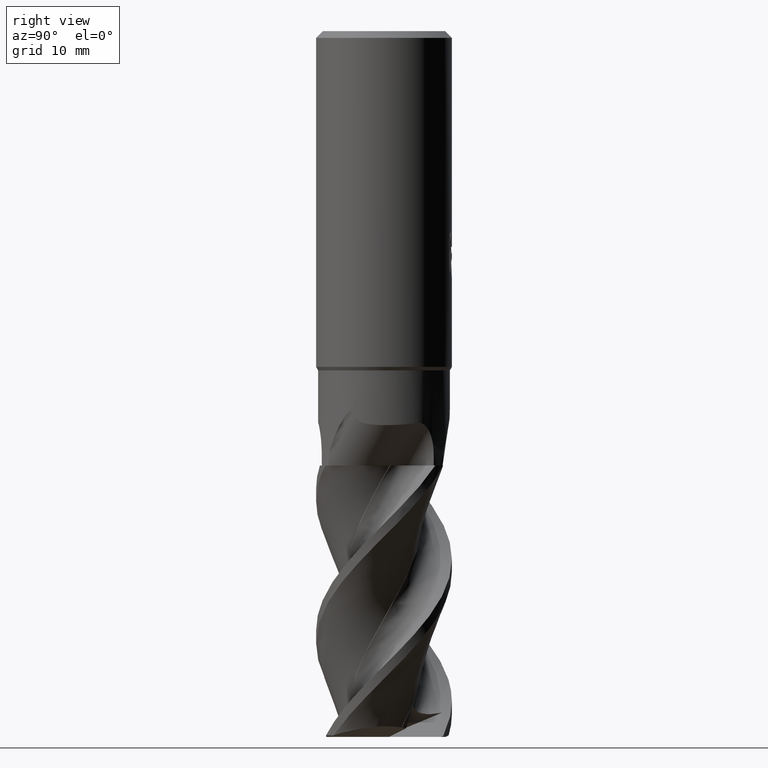
[diagram: clean part render]
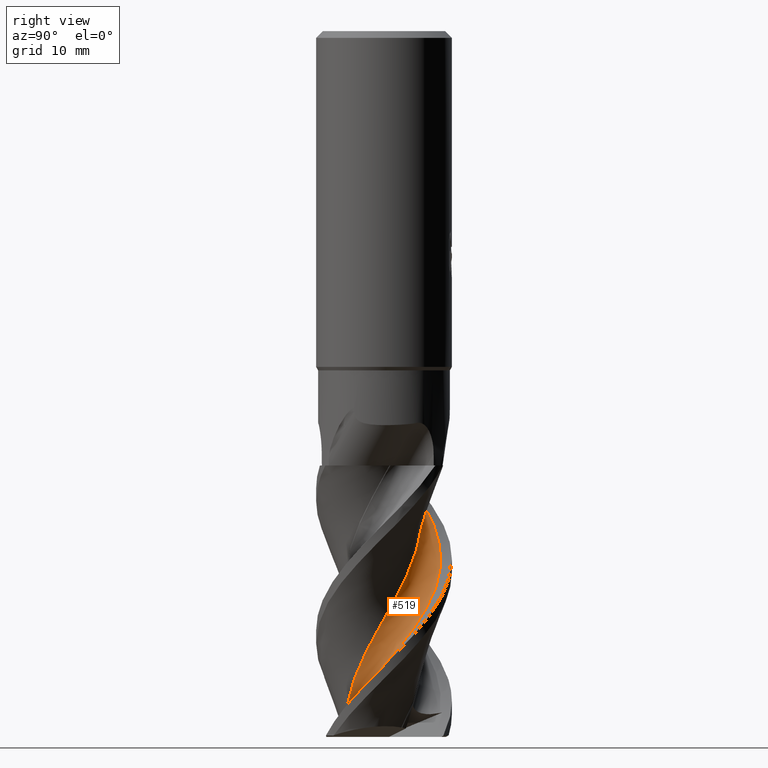
[diagram: same view with one face highlighted and labeled with its STEP entity id]
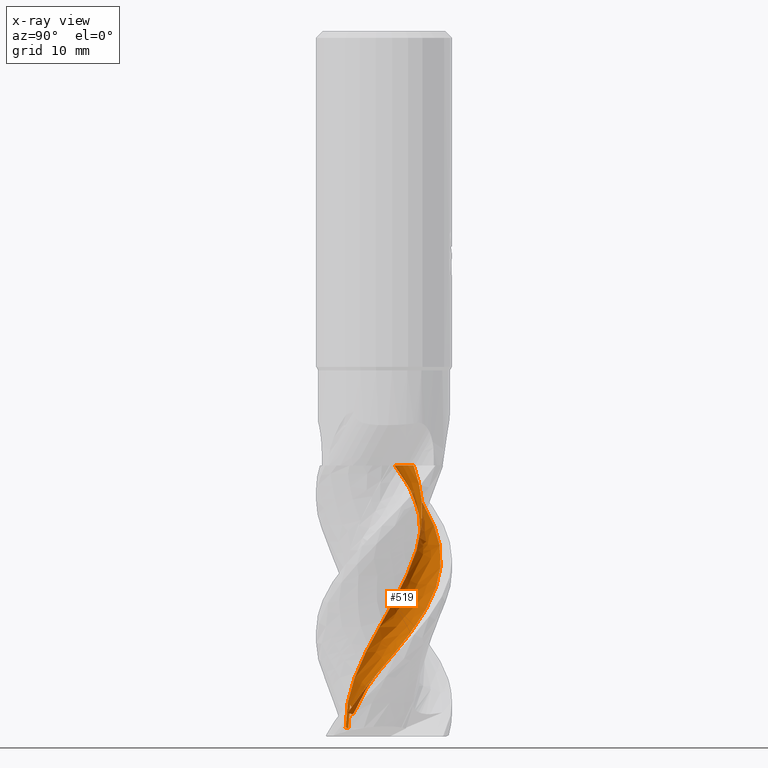
[diagram: x-ray of the same camera — body ghosted, the highlighted face saturated]
A machine part, right view. The second image highlights one B-rep face of the part: STEP entity #519.
The next image is the same camera in x-ray: the body ghosted, the highlighted face saturated — about 1% of this face is hidden behind the body in this view.
In plain terms, the highlighted face is a freeform B-spline surface patch.
Its self-contained STEP definition (entity closure, byte-faithful):
#519=ADVANCED_FACE('',(#1381),#1382,.T.);
#545=VERTEX_POINT('',#1410);
#575=EDGE_CURVE('',#1195,#893,#1441,.T.);
#657=EDGE_CURVE('',#1253,#1187,#1535,.T.);
#777=EDGE_CURVE('',#893,#1187,#1662,.T.);
#893=VERTEX_POINT('',#1795);
#1005=VERTEX_POINT('',#1912);
#1079=EDGE_CURVE('',#1253,#1005,#1993,.T.);
#1139=EDGE_CURVE('',#1005,#545,#2062,.T.);
#1187=VERTEX_POINT('',#2112);
#1195=VERTEX_POINT('',#2120);
#1253=VERTEX_POINT('',#2183);
#1261=EDGE_CURVE('',#545,#1195,#2192,.T.);
#1381=FACE_OUTER_BOUND('',#2611,.T.);
#1382=B_SPLINE_SURFACE_WITH_KNOTS('',3,3,((#2612,#2613,#2614,#2615,#2616,#2617,#2618,#2619,#2620,#2621,#2622,#2623,#2624,#2625,#2626,#2627,#2628,#2629,#2630,#2631,#2632,#2633,#2634,#2635,#2636,#2637,#2638,#2639,#2640,#2641,#2642,#2643,#2644,#2645,#2646,#2647,#2648,#2649,#2650,#2651,#2652,#2653,#2654,#2655,#2656,#2657,#2658,#2659,#2660,#2661,#2662,#2663,#2664,#2665,#2666,#2667),(#2668,#2669,#2670,#2671,#2672,#2673,#2674,#2675,#2676,#2677,#2678,#2679,#2680,#2681,#2682,#2683,#2684,#2685,#2686,#2687,#2688,#2689,#2690,#2691,#2692,#2693,#2694,#2695,#2696,#2697,#2698,#2699,#2700,#2701,#2702,#2703,#2704,#2705,#2706,#2707,#2708,#2709,#2710,#2711,#2712,#2713,#2714,#2715,#2716,#2717,#2718,#2719,#2720,#2721,#2722,#2723),(#2724,#2725,#2726,#2727,#2728,#2729,#2730,#2731,#2732,#2733,#2734,#2735,#2736,#2737,#2738,#2739,#2740,#2741,#2742,#2743,#2744,#2745,#2746,#2747,#2748,#2749,#2750,#2751,#2752,#2753,#2754,#2755,#2756,#2757,#2758,#2759,#2760,#2761,#2762,#2763,#2764,#2765,#2766,#2767,#2768,#2769,#2770,#2771,#2772,#2773,#2774,#2775,#2776,#2777,#2778,#2779),(#2780,#2781,#2782,#2783,#2784,#2785,#2786,#2787,#2788,#2789,#2790,#2791,#2792,#2793,#2794,#2795,#2796,#2797,#2798,#2799,#2800,#2801,#2802,#2803,#2804,#2805,#2806,#2807,#2808,#2809,#2810,#2811,#2812,#2813,#2814,#2815,#2816,#2817,#2818,#2819,#2820,#2821,#2822,#2823,#2824,#2825,#2826,#2827,#2828,#2829,#2830,#2831,#2832,#2833,#2834,#2835),(#2836,#2837,#2838,#2839,#2840,#2841,#2842,#2843,#2844,#2845,#2846,#2847,#2848,#2849,#2850,#2851,#2852,#2853,#2854,#2855,#2856,#2857,#2858,#2859,#2860,#2861,#2862,#2863,#2864,#2865,#2866,#2867,#2868,#2869,#2870,#2871,#2872,#2873,#2874,#2875,#2876,#2877,#2878,#2879,#2880,#2881,#2882,#2883,#2884,#2885,#2886,#2887,#2888,#2889,#2890,#2891),(#2892,#2893,#2894,#2895,#2896,#2897,#2898,#2899,#2900,#2901,#2902,#2903,#2904,#2905,#2906,#2907,#2908,#2909,#2910,#2911,#2912,#2913,#2914,#2915,#2916,#2917,#2918,#2919,#2920,#2921,#2922,#2923,#2924,#2925,#2926,#2927,#2928,#2929,#2930,#2931,#2932,#2933,#2934,#2935,#2936,#2937,#2938,#2939,#2940,#2941,#2942,#2943,#2944,#2945,#2946,#2947),(#2948,#2949,#2950,#2951,#2952,#2953,#2954,#2955,#2956,#2957,#2958,#2959,#2960,#2961,#2962,#2963,#2964,#2965,#2966,#2967,#2968,#2969,#2970,#2971,#2972,#2973,#2974,#2975,#2976,#2977,#2978,#2979,#2980,#2981,#2982,#2983,#2984,#2985,#2986,#2987,#2988,#2989,#2990,#2991,#2992,#2993,#2994,#2995,#2996,#2997,#2998,#2999,#3000,#3001,#3002,#3003)),.UNSPECIFIED.,.F.,.F.,.F.,(4,1,1,1,4),(4,1,1,2,1,2,1,2,1,1,1,2,1,2,1,2,1,2,1,2,1,2,1,2,1,2,1,2,1,2,1,2,1,2,1,2,1,4),(-1.0741206365629E-016,0.362155819777946,0.724311639555892,1.08646745933384,1.44862327911178),(0.0,1.2562153494694,1.88432302420411,2.51243069893881,3.76864604840821,5.02486139787761,7.53729209681642,10.0497227957552,11.3059381452246,12.562153494694,13.8183688441634,15.0745841936328,17.5870148925716,20.0994455915105,22.6118762904493,25.1243069893881,27.6367376883269,30.1491683872657,32.6615990862045,35.1740297851433,37.6864604840821,40.1988911830209,42.7113218819597,45.2237525808985,47.7361832798373,50.2486139787761,52.7610446777149,55.2734753766537,57.7859060755926,60.2983367745314,62.8107674734702,65.323198172409,67.8356288713478,70.3480595702866,72.8604902692254,75.3729209681642,77.885351667103,80.3977823660418),.UNSPECIFIED.);
#1410=CARTESIAN_POINT('',(0.697630034338884,-5.24131553305176,-102.739324993559));
#1441=B_SPLINE_CURVE_WITH_KNOTS('',3,(#3209,#3210,#3211,#3212,#3213,#3214,#3215,#3216,#3217,#3218,#3219,#3220,#3221,#3222,#3223,#3224,#3225,#3226,#3227,#3228,#3229,#3230,#3231,#3232,#3233,#3234,#3235,#3236,#3237,#3238,#3239,#3240,#3241,#3242,#3243,#3244,#3245,#3246,#3247,#3248,#3249,#3250,#3251,#3252,#3253,#3254,#3255,#3256,#3257,#3258,#3259,#3260,#3261),.UNSPECIFIED.,.F.,.F.,(4,1,2,1,2,1,2,1,2,1,2,1,2,1,2,1,2,1,2,1,2,1,2,1,2,1,2,1,2,1,2,1,2,1,4),(0.0,1.2562153494694,2.51243069893881,3.76864604840821,5.02486139787761,7.53729209681642,10.0497227957552,12.562153494694,15.0745841936328,17.5870148925716,20.0994455915105,22.6118762904493,25.1243069893881,27.6367376883269,30.1491683872657,32.6615990862045,35.1740297851433,37.6864604840821,40.1988911830209,42.7113218819597,45.2237525808985,47.7361832798373,50.2486139787761,52.7610446777149,55.2734753766537,57.7859060755926,60.2983367745314,62.8107674734702,65.323198172409,67.8356288713478,70.3480595702866,72.8604902692254,75.3729209681642,77.885351667103,80.3977823660418),.UNSPECIFIED.);
#1535=B_SPLINE_CURVE_WITH_KNOTS('',3,(#3953,#3954,#3955,#3956,#3957,#3958,#3959,#3960,#3961,#3962,#3963,#3964,#3965,#3966,#3967,#3968,#3969,#3970,#3971,#3972,#3973,#3974,#3975,#3976,#3977,#3978,#3979,#3980,#3981,#3982,#3983,#3984,#3985,#3986,#3987,#3988,#3989,#3990,#3991,#3992,#3993,#3994,#3995,#3996,#3997,#3998,#3999,#4000,#4001,#4002,#4003,#4004,#4005,#4006,#4007,#4008),.UNSPECIFIED.,.F.,.F.,(4,1,1,2,1,2,1,2,1,1,1,2,1,2,1,2,1,2,1,2,1,2,1,2,1,2,1,2,1,2,1,2,1,2,1,2,1,4),(0.0,1.2562153494694,1.88432302420411,2.51243069893881,3.76864604840821,5.02486139787761,7.53729209681642,10.0497227957552,11.3059381452246,12.562153494694,13.8183688441634,15.0745841936328,17.5870148925716,20.0994455915105,22.6118762904493,25.1243069893881,27.6367376883269,30.1491683872657,32.6615990862045,35.1740297851433,37.6864604840821,40.1988911830209,42.7113218819597,45.2237525808985,47.7361832798373,50.2486139787761,52.7610446777149,55.2734753766537,57.7859060755926,60.2983367745314,62.8107674734702,65.323198172409,67.8356288713478,70.3480595702866,72.8604902692254,75.3729209681642,77.885351667103,80.3977823660418),.UNSPECIFIED.);
#1662=B_SPLINE_CURVE_WITH_KNOTS('',3,(#4691,#4692,#4693,#4694,#4695,#4696,#4697,#4698,#4699,#4700),.UNSPECIFIED.,.F.,.F.,(4,2,2,2,4),(0.0,1.58917941689797,3.1782583156222,4.54299936996219,5.9077090378205),.UNSPECIFIED.);
#1795=CARTESIAN_POINT('',(-3.59254203098114,4.36123755322661,-64.0000000000142));
#1912=CARTESIAN_POINT('',(2.05382532942316,-4.9912354014841,-99.3260103740839));
#1993=B_SPLINE_CURVE_WITH_KNOTS('',3,(#8211,#8212,#8213,#8214,#8215,#8216,#8217,#8218,#8219,#8220,#8221,#8222),.UNSPECIFIED.,.F.,.F.,(4,2,2,2,2,4),(0.0,2.05351377162254,3.44269319434948,4.47278187714262,5.4225572670729,6.1251875237065),.UNSPECIFIED.);
#2062=B_SPLINE_CURVE_WITH_KNOTS('',3,(#9029,#9030,#9031,#9032,#9033,#9034,#9035,#9036,#9037,#9038),.UNSPECIFIED.,.F.,.F.,(4,2,2,2,4),(0.0,3.28436594827218,5.16969226336609,8.69076298013243,12.0571280478275),.UNSPECIFIED.);
#2112=CARTESIAN_POINT('',(-8.21583084974177,1.59106973061077,-64.0000000000002));
#2120=CARTESIAN_POINT('',(-0.163584784346962,-5.64739651352138,-102.607381284739));
#2183=CARTESIAN_POINT('',(6.41067370808631,-5.37938452218688,-100.473594224671));
#2192=B_SPLINE_CURVE_WITH_KNOTS('',3,(#10008,#10009,#10010,#10011,#10012,#10013),.UNSPECIFIED.,.F.,.F.,(4,2,4),(0.0,0.918155905580375,1.81260172435705),.UNSPECIFIED.);
#2611=EDGE_LOOP('',(#10166,#10167,#10168,#10169,#10170,#10171));
#2612=CARTESIAN_POINT('',(-4.83107658423176,2.85741258421852,-124.0));
#2613=CARTESIAN_POINT('',(-4.85984183783767,2.85520423692796,-123.583489134418));
#2614=CARTESIAN_POINT('',(-4.94909253308961,2.75695740984732,-122.957519477871));
#2615=CARTESIAN_POINT('',(-5.13274577943178,2.41455558506123,-122.122694321478));
#2616=CARTESIAN_POINT('',(-5.23531044688363,2.16841966580421,-121.705937944665));
#2617=CARTESIAN_POINT('',(-5.38618577900745,1.74230482075507,-121.081961459944));
#2618=CARTESIAN_POINT('',(-5.53164709563376,1.20455058119635,-120.250473814629));
#2619=CARTESIAN_POINT('',(-5.60090462465886,0.730610848828762,-119.417804460286));
#2620=CARTESIAN_POINT('',(-5.66572564696487,0.0578044164119151,-118.166779737554));
#2621=CARTESIAN_POINT('',(-5.64598922740512,-0.841868922201085,-116.498827370045));
#2622=CARTESIAN_POINT('',(-5.39764886394642,-1.75099611851244,-114.831351833637));
#2623=CARTESIAN_POINT('',(-5.10927240451381,-2.42500209907253,-113.581977742909));
#2624=CARTESIAN_POINT('',(-4.89320144777704,-2.85296304328729,-112.749152188109));
#2625=CARTESIAN_POINT('',(-4.50322250644853,-3.4362192704442,-111.499670947832));
#2626=CARTESIAN_POINT('',(-4.04669536229412,-3.96538585045992,-110.249745190633));
#2627=CARTESIAN_POINT('',(-3.69452993904211,-4.2826587461019,-109.41623678091));
#2628=CARTESIAN_POINT('',(-3.12690327772158,-4.72947463990694,-108.166014587275));
#2629=CARTESIAN_POINT('',(-2.3235479425068,-5.2127128486472,-106.499518140304));
#2630=CARTESIAN_POINT('',(-1.42693942064384,-5.48966230158005,-104.832463074629));
#2631=CARTESIAN_POINT('',(-0.476104281071404,-5.64960895081664,-103.165874721699));
#2632=CARTESIAN_POINT('',(0.459867046598248,-5.68838852530921,-101.499637161791));
#2633=CARTESIAN_POINT('',(1.37873517113813,-5.50209373030847,-99.8325837457953));
#2634=CARTESIAN_POINT('',(2.29038457310019,-5.18649346564756,-98.1658989284321));
#2635=CARTESIAN_POINT('',(3.1309920374696,-4.77143116050014,-96.4996050304622));
#2636=CARTESIAN_POINT('',(3.84810460001037,-4.16716544457898,-94.832558183804));
#2637=CARTESIAN_POINT('',(4.49660288369389,-3.45337817098467,-93.1658935381287));
#2638=CARTESIAN_POINT('',(5.03517302049759,-2.68638927294522,-91.4996077982862));
#2639=CARTESIAN_POINT('',(5.37484554289749,-1.81232142343461,-89.8325562130519));
#2640=CARTESIAN_POINT('',(5.60178363395305,-0.874839088269213,-88.1658874935744));
#2641=CARTESIAN_POINT('',(5.70669315278437,0.0565851557501879,-86.4996023694439));
#2642=CARTESIAN_POINT('',(5.58571795286742,0.986450305120184,-84.8325544668937));
#2643=CARTESIAN_POINT('',(5.33546723975916,1.91784710908979,-83.1658874402518));
#2644=CARTESIAN_POINT('',(4.98104310234723,2.78548397007053,-81.4996004435352));
#2645=CARTESIAN_POINT('',(4.42904755105358,3.54358489371492,-79.8325490292434));
#2646=CARTESIAN_POINT('',(3.76278883236554,4.24107484850735,-78.1658806994133));
#2647=CARTESIAN_POINT('',(3.03570006450884,4.83260149603101,-76.4995960270282));
#2648=CARTESIAN_POINT('',(2.18788985462631,5.23320626328994,-74.8325481620052));
#2649=CARTESIAN_POINT('',(1.26894672273599,5.52585926012576,-73.1658807544039));
#2650=CARTESIAN_POINT('',(0.347370552085116,5.69640651867527,-71.4995933575733));
#2651=CARTESIAN_POINT('',(-0.588782676327873,5.64152560074168,-69.8325415335107));
#2652=CARTESIAN_POINT('',(-1.53567092029058,5.45775003973806,-68.1658727490523));
#2653=CARTESIAN_POINT('',(-2.42628970478902,5.16552825687482,-66.4995882626623));
#2654=CARTESIAN_POINT('',(-3.22149790129932,4.66853590567415,-64.8325437396665));
#2655=CARTESIAN_POINT('',(-3.96428789699309,4.05335807851242,-63.1658817597549));
#2656=CARTESIAN_POINT('',(-4.60568543117711,3.37005737181973,-61.4995936320529));
#2657=CARTESIAN_POINT('',(-5.0652978156308,2.55271036889284,-59.8325250797754));
#2658=CARTESIAN_POINT('',(-5.4222710448791,1.656581703096,-58.1658325075494));
#2659=CARTESIAN_POINT('',(-5.65756979729374,0.749089994285798,-56.4995552611875));
#2660=CARTESIAN_POINT('',(-5.66900139968616,-0.188194491862587,-54.832571445916));
#2661=CARTESIAN_POINT('',(-5.55301317673233,-1.14467893524144,-53.1659818005691));
#2662=CARTESIAN_POINT('',(-5.32510769932733,-2.05334483673181,-51.4996520029366));
#2663=CARTESIAN_POINT('',(-4.88404285341836,-2.88447337093531,-49.8324230396109));
#2664=CARTESIAN_POINT('',(-4.318623668717,-3.67275127190707,-48.165596216859));
#2665=CARTESIAN_POINT('',(-3.6805603999102,-4.35952873913681,-46.4994934389875));
#2666=CARTESIAN_POINT('',(-2.91158299771985,-4.86793214936825,-44.8327268137792));
#2667=CARTESIAN_POINT('',(-2.48893759384941,-5.07502783564365,-43.9993863601179));
#2668=CARTESIAN_POINT('',(-4.8147522151221,2.36676173862821,-124.0));
#2669=CARTESIAN_POINT('',(-4.83989144234571,2.36467403314079,-123.583471296281));
#2670=CARTESIAN_POINT('',(-4.91566013677035,2.26678014273113,-122.957623030004));
#2671=CARTESIAN_POINT('',(-5.06497332839445,1.92802741949817,-122.122982992679));
#2672=CARTESIAN_POINT('',(-5.14502171720395,1.68570297589585,-121.706237145751));
#2673=CARTESIAN_POINT('',(-5.25847524585878,1.26759912464769,-121.082132095118));
#2674=CARTESIAN_POINT('',(-5.35840304999545,0.743617554602509,-120.250413710071));
#2675=CARTESIAN_POINT('',(-5.38983074479187,0.286944194208991,-119.417661812426));
#2676=CARTESIAN_POINT('',(-5.40238542523941,-0.358376283964306,-118.166765436732));
#2677=CARTESIAN_POINT('',(-5.31785570456659,-1.21343813743355,-116.498973586331));
#2678=CARTESIAN_POINT('',(-5.01501779409647,-2.06145616644312,-114.831598626253));
#2679=CARTESIAN_POINT('',(-4.69106030405929,-2.68297497383419,-113.582146118434));
#2680=CARTESIAN_POINT('',(-4.45396108870468,-3.07507167137666,-112.74925703127));
#2681=CARTESIAN_POINT('',(-4.03990365948538,-3.60225617045985,-111.499710896015));
#2682=CARTESIAN_POINT('',(-3.5664223626929,-4.07302032945712,-110.24977580646));
#2683=CARTESIAN_POINT('',(-3.20775218901903,-4.3496494724827,-109.416289229205));
#2684=CARTESIAN_POINT('',(-2.63423222839776,-4.73413772341773,-108.166094701098));
#2685=CARTESIAN_POINT('',(-1.83368888440477,-5.13584026703646,-106.499576878258));
#2686=CARTESIAN_POINT('',(-0.959386021661692,-5.33428001478732,-104.832570137094));
#2687=CARTESIAN_POINT('',(-0.041525349876369,-5.41746553991929,-103.165971870908));
#2688=CARTESIAN_POINT('',(0.852903387565208,-5.38609389497597,-101.49968054873));
#2689=CARTESIAN_POINT('',(1.71461358879699,-5.14162550634891,-99.8326753396521));
#2690=CARTESIAN_POINT('',(2.56049541998753,-4.77443600967512,-98.1659926055094));
#2691=CARTESIAN_POINT('',(3.33096678084633,-4.31769665843457,-96.4996520359114));
#2692=CARTESIAN_POINT('',(3.97001146400057,-3.68978799094185,-94.8326525443866));
#2693=CARTESIAN_POINT('',(4.53608589051259,-2.96226596367183,-93.1659874677001));
#2694=CARTESIAN_POINT('',(4.99314815337413,-2.19232738772452,-91.49965404604));
#2695=CARTESIAN_POINT('',(5.25297447004887,-1.33493424462244,-89.8326503635734));
#2696=CARTESIAN_POINT('',(5.40098118692261,-0.42491795088923,-88.1659817877662));
#2697=CARTESIAN_POINT('',(5.43293888919873,0.470012594710599,-86.4996488736355));
#2698=CARTESIAN_POINT('',(5.24989043783475,1.34696456767424,-84.8326483783648));
#2699=CARTESIAN_POINT('',(4.94354556638945,2.21642315349205,-83.1659813517229));
#2700=CARTESIAN_POINT('',(4.54259823071808,3.01706474081777,-81.4996467424636));
#2701=CARTESIAN_POINT('',(3.96149247256157,3.69896622744234,-79.8326432061324));
#2702=CARTESIAN_POINT('',(3.27569891029131,4.31519697136236,-78.1659750199726));
#2703=CARTESIAN_POINT('',(2.53990287685351,4.82561890504039,-76.4996424540646));
#2704=CARTESIAN_POINT('',(1.70307946924241,5.1454024666795,-74.8326420382053));
#2705=CARTESIAN_POINT('',(0.805947663330664,5.35738943277675,-73.165974630604));
#2706=CARTESIAN_POINT('',(-0.0843908223124151,5.45259187797167,-71.4996397230798));
#2707=CARTESIAN_POINT('',(-0.972153393062773,5.33204546821935,-69.8326357566176));
#2708=CARTESIAN_POINT('',(-1.86121994673007,5.08792780119175,-68.1659672595));
#2709=CARTESIAN_POINT('',(-2.68829535756974,4.74455676258749,-66.4996347659645));
#2710=CARTESIAN_POINT('',(-3.40955513835174,4.21314022328684,-64.8326374137414));
#2711=CARTESIAN_POINT('',(-4.07267897718945,3.57273169404282,-63.1659745718075));
#2712=CARTESIAN_POINT('',(-4.63380167905972,2.87500973066059,-61.4996390606654));
#2713=CARTESIAN_POINT('',(-5.01201687635592,2.06290186855445,-59.8326205602654));
#2714=CARTESIAN_POINT('',(-5.28696919844401,1.18282627484783,-58.1659311487879));
#2715=CARTESIAN_POINT('',(-5.44488400718686,0.301173963506645,-56.4996052397528));
#2716=CARTESIAN_POINT('',(-5.38742081251424,-0.592496482835579,-54.8326610492614));
#2717=CARTESIAN_POINT('',(-5.20720827988931,-1.49562946836735,-53.1660610596469));
#2718=CARTESIAN_POINT('',(-4.92379000003787,-2.34457858211186,-51.4996886954588));
#2719=CARTESIAN_POINT('',(-4.44302288764593,-3.10417798048708,-49.8325296530412));
#2720=CARTESIAN_POINT('',(-3.84669494157446,-3.81435481127843,-48.1657238061652));
#2721=CARTESIAN_POINT('',(-3.18873610395572,-4.422014928153,-46.4995522333838));
#2722=CARTESIAN_POINT('',(-2.41928468238575,-4.85006531491884,-44.8328008670738));
#2723=CARTESIAN_POINT('',(-2.00150964728401,-5.01655794305322,-43.9994629994794));
#2724=CARTESIAN_POINT('',(-4.96169007308228,1.37963322150694,-124.0));
#2725=CARTESIAN_POINT('',(-4.97953419975811,1.37645962075615,-123.583436805489));
#2726=CARTESIAN_POINT('',(-5.02821377465326,1.27433698359537,-122.957823244258));
#2727=CARTESIAN_POINT('',(-5.10752163392067,0.930312642851853,-122.12354112962));
#2728=CARTESIAN_POINT('',(-5.14114923778697,0.6873688830259,-121.706815637475));
#2729=CARTESIAN_POINT('',(-5.17683834518586,0.271587965211065,-121.082462018055));
#2730=CARTESIAN_POINT('',(-5.18067194551255,-0.241517986718847,-120.250297498164));
#2731=CARTESIAN_POINT('',(-5.13013180549842,-0.67750982322528,-119.417386005723));
#2732=CARTESIAN_POINT('',(-5.02810945686206,-1.28699650100529,-118.166737790869));
#2733=CARTESIAN_POINT('',(-4.7976846023945,-2.0765636872567,-116.499256301777));
#2734=CARTESIAN_POINT('',(-4.36350168538457,-2.82232828210098,-114.83207576383));
#2735=CARTESIAN_POINT('',(-3.94918213793485,-3.35191150482042,-113.582471680113));
#2736=CARTESIAN_POINT('',(-3.65690619892092,-3.67998699598018,-112.749459740696));
#2737=CARTESIAN_POINT('',(-3.17417639782519,-4.10385784234793,-111.499788140173));
#2738=CARTESIAN_POINT('',(-2.645416226418,-4.46404013201413,-110.249835002152));
#2739=CARTESIAN_POINT('',(-2.25886260496274,-4.66177479749327,-109.416390622557));
#2740=CARTESIAN_POINT('',(-1.65074547301539,-4.92378359071649,-108.16624962544));
#2741=CARTESIAN_POINT('',(-0.825982632086491,-5.16141010505289,-106.499690423443));
#2742=CARTESIAN_POINT('',(0.0324507607650164,-5.19469025811115,-104.832777156549));
#2743=CARTESIAN_POINT('',(0.912467538883595,-5.11230760577094,-103.166159687469));
#2744=CARTESIAN_POINT('',(1.74949949189293,-4.92544993388155,-101.499764487422));
#2745=CARTESIAN_POINT('',(2.51820299664596,-4.54373169484956,-99.8328523479846));
#2746=CARTESIAN_POINT('',(3.2514515967798,-4.04930784828013,-98.1661738119334));
#2747=CARTESIAN_POINT('',(3.89692596916848,-3.48355671388336,-96.4997429032351));
#2748=CARTESIAN_POINT('',(4.38851192335894,-2.7797958462959,-94.8328349341695));
#2749=CARTESIAN_POINT('',(4.79479054520992,-1.99464076854214,-93.1661691302446));
#2750=CARTESIAN_POINT('',(5.08994124006153,-1.18897123978255,-91.4997434046961));
#2751=CARTESIAN_POINT('',(5.18399613783801,-0.335698239292358,-89.8328324666282));
#2752=CARTESIAN_POINT('',(5.16411120878676,0.548283736578131,-88.1661640358642));
#2753=CARTESIAN_POINT('',(5.03683030346696,1.3969387378115,-86.499738745937));
#2754=CARTESIAN_POINT('',(4.71028744697879,2.19079959291055,-84.8328301030049));
#2755=CARTESIAN_POINT('',(4.26910141700056,2.9569312675576,-83.1661627760942));
#2756=CARTESIAN_POINT('',(3.75060092163416,3.64063035774704,-81.4997362818476));
#2757=CARTESIAN_POINT('',(3.08339403459647,4.18081046085526,-79.8328253998708));
#2758=CARTESIAN_POINT('',(2.32879520642902,4.64169723329836,-78.1661572793839));
#2759=CARTESIAN_POINT('',(1.54590240023427,4.99312109485338,-76.4997322329446));
#2760=CARTESIAN_POINT('',(0.701468116004637,5.14726537009508,-74.8328236228458));
#2761=CARTESIAN_POINT('',(-0.181571918237768,5.18996153884281,-73.1661560585643));
#2762=CARTESIAN_POINT('',(-1.03702120953188,5.12306386358028,-71.4997292628409));
#2763=CARTESIAN_POINT('',(-1.85205110741304,4.85349491733503,-69.8328182246308));
#2764=CARTESIAN_POINT('',(-2.64757733556006,4.46754815791796,-68.1661497011449));
#2765=CARTESIAN_POINT('',(-3.36630615999396,3.99863667086395,-66.4997249250905));
#2766=CARTESIAN_POINT('',(-3.95229094282969,3.37131649585119,-64.8328183268338));
#2767=CARTESIAN_POINT('',(-4.46534106974573,2.65129582122478,-63.1661542229967));
#2768=CARTESIAN_POINT('',(-4.87121662828111,1.89535451196335,-61.4997267779874));
#2769=CARTESIAN_POINT('',(-5.08474445445922,1.06393144100828,-59.8328052006077));
#2770=CARTESIAN_POINT('',(-5.18980413980463,0.185936877071889,-58.1661218359208));
#2771=CARTESIAN_POINT('',(-5.18351699614941,-0.672367462582602,-56.4997021544237));
#2772=CARTESIAN_POINT('',(-4.97232201072482,-1.50403900621598,-54.832833760405));
#2773=CARTESIAN_POINT('',(-4.64415312505853,-2.32399168496847,-53.1662148379273));
#2774=CARTESIAN_POINT('',(-4.22786928416057,-3.0738433479622,-51.4997592752296));
#2775=CARTESIAN_POINT('',(-3.64152944662292,-3.70493732937352,-49.8327359803216));
#2776=CARTESIAN_POINT('',(-2.9548077266092,-4.27024844352149,-48.1659703015155));
#2777=CARTESIAN_POINT('',(-2.22810627894383,-4.72697959089349,-46.4996658252877));
#2778=CARTESIAN_POINT('',(-1.42829714642605,-4.99452173536102,-44.8329444102773));
#2779=CARTESIAN_POINT('',(-1.0054003959674,-5.07803786577231,-43.9996111789387));
#2780=CARTESIAN_POINT('',(-5.69243742740758,0.0729952488271419,-124.0));
#2781=CARTESIAN_POINT('',(-5.70062518599267,0.0644212640370169,-123.583395323983));
#2782=CARTESIAN_POINT('',(-5.7135519546844,-0.0580303250736018,-122.958064043756));
#2783=CARTESIAN_POINT('',(-5.69745906131813,-0.446655111207493,-122.124212405559));
#2784=CARTESIAN_POINT('',(-5.66629736456123,-0.715138705985129,-121.707511395719));
#2785=CARTESIAN_POINT('',(-5.59166498332776,-1.16899011350837,-121.082858816963));
#2786=CARTESIAN_POINT('',(-5.45491890938322,-1.71791063915407,-120.250157729242));
#2787=CARTESIAN_POINT('',(-5.27840389515513,-2.16845383492279,-119.417054292566));
#2788=CARTESIAN_POINT('',(-4.99661003921505,-2.78856709529218,-118.166704536963));
#2789=CARTESIAN_POINT('',(-4.52671730704679,-3.5637975048181,-116.499596319606));
#2790=CARTESIAN_POINT('',(-3.85394119026258,-4.23592783574093,-114.832649638436));
#2791=CARTESIAN_POINT('',(-3.26400240254451,-4.68456934388697,-113.582863227496));
#2792=CARTESIAN_POINT('',(-2.8603002194397,-4.95216128763476,-112.749703542882));
#2793=CARTESIAN_POINT('',(-2.22633010392062,-5.26760215704396,-111.499881044255));
#2794=CARTESIAN_POINT('',(-1.56125499925848,-5.50204053029741,-110.249906196667));
#2795=CARTESIAN_POINT('',(-1.09365715663085,-5.60392219854824,-109.416512575555));
#2796=CARTESIAN_POINT('',(-0.371913948069051,-5.71250568800557,-108.166435941675));
#2797=CARTESIAN_POINT('',(0.574024440666684,-5.73284046058688,-106.499826982048));
#2798=CARTESIAN_POINT('',(1.49797303581581,-5.52600280373184,-104.833026159706));
#2799=CARTESIAN_POINT('',(2.41289670691239,-5.19125078747003,-103.166385557066));
#2800=CARTESIAN_POINT('',(3.25204871226941,-4.75577491388399,-101.49986542408));
#2801=CARTESIAN_POINT('',(3.96322732116928,-4.13209459733347,-99.8330652907414));
#2802=CARTESIAN_POINT('',(4.60609620564497,-3.39932748746926,-98.1663916972216));
#2803=CARTESIAN_POINT('',(5.13416255291878,-2.61422446480891,-96.4998522145795));
#2804=CARTESIAN_POINT('',(5.45920827477646,-1.72568993254106,-94.833054300422));
#2805=CARTESIAN_POINT('',(5.67195748411057,-0.774761994456366,-93.1663876129287));
#2806=CARTESIAN_POINT('',(5.75897061328025,0.167080851454194,-91.4998509237148));
#2807=CARTESIAN_POINT('',(5.61829396670623,1.10267601033672,-89.8330513949169));
#2808=CARTESIAN_POINT('',(5.34905651067928,2.03936604115688,-88.1663833159059));
#2809=CARTESIAN_POINT('',(4.97380403539541,2.90773620067937,-86.4998468416844));
#2810=CARTESIAN_POINT('',(4.40180912440834,3.66130031601069,-84.8330485651204));
#2811=CARTESIAN_POINT('',(3.71655500857006,4.35414987728069,-83.1663810764826));
#2812=CARTESIAN_POINT('',(2.97100165476684,4.93627907173141,-81.4998439426228));
#2813=CARTESIAN_POINT('',(2.10769320529156,5.32341418226796,-79.8330444842013));
#2814=CARTESIAN_POINT('',(1.17401531147917,5.6029541635125,-78.1663765260476));
#2815=CARTESIAN_POINT('',(0.240553762308966,5.75636801702055,-76.4998401886374));
#2816=CARTESIAN_POINT('',(-0.702588534197319,5.68220072652322,-74.8330420189242));
#2817=CARTESIAN_POINT('',(-1.65583310235141,5.47992872457016,-73.1663742609386));
#2818=CARTESIAN_POINT('',(-2.54849093822975,5.16709682329473,-71.4998370588225));
#2819=CARTESIAN_POINT('',(-3.34069279806514,4.64982622391713,-69.8330374716952));
#2820=CARTESIAN_POINT('',(-4.0803792551486,4.01520999955786,-68.1663693341189));
#2821=CARTESIAN_POINT('',(-4.71384139429808,3.31260964685388,-66.4998331630671));
#2822=CARTESIAN_POINT('',(-5.16103372628899,2.47886312655805,-64.8330360982299));
#2823=CARTESIAN_POINT('',(-5.50587367233618,1.56740458502643,-63.1663701054728));
#2824=CARTESIAN_POINT('',(-5.7249121935199,0.647285458525096,-61.4998324069828));
#2825=CARTESIAN_POINT('',(-5.71768422687132,-0.29875844079422,-59.833027193569));
#2826=CARTESIAN_POINT('',(-5.58331482951876,-1.26412584223472,-58.1663512526073));
#2827=CARTESIAN_POINT('',(-5.33427880405263,-2.17694569683343,-56.4998184092087));
#2828=CARTESIAN_POINT('',(-4.8744806260407,-3.00334916432791,-54.8330420167915));
#2829=CARTESIAN_POINT('',(-4.29455316920204,-3.78525141162255,-53.1663992533172));
#2830=CARTESIAN_POINT('',(-3.63922039729322,-4.46670396905231,-51.4998444838969));
#2831=CARTESIAN_POINT('',(-2.8364883623886,-4.97364061592607,-49.8329840236603));
#2832=CARTESIAN_POINT('',(-1.94597234989234,-5.38377726946707,-48.1662668719643));
#2833=CARTESIAN_POINT('',(-1.04262612264637,-5.66532166797223,-46.4998024578827));
#2834=CARTESIAN_POINT('',(-0.114927000880395,-5.72383906102398,-44.8331169135147));
#2835=CARTESIAN_POINT('',(0.359253592204209,-5.6936789530231,-43.99978939569));
#2836=CARTESIAN_POINT('',(-6.83871133032864,-0.890014937092681,-124.0));
#2837=CARTESIAN_POINT('',(-6.83978221622719,-0.907060143714171,-123.583369479399));
#2838=CARTESIAN_POINT('',(-6.82647696705991,-1.06118884816419,-122.958214069446));
#2839=CARTESIAN_POINT('',(-6.73697137147766,-1.52532040833393,-122.124630632578));
#2840=CARTESIAN_POINT('',(-6.6542703657915,-1.84064115402759,-121.707944876185));
#2841=CARTESIAN_POINT('',(-6.48995864599652,-2.36917883911226,-121.083106036048));
#2842=CARTESIAN_POINT('',(-6.23443818179708,-3.00139594981892,-120.250070651447));
#2843=CARTESIAN_POINT('',(-5.9452732683185,-3.51017735264714,-119.416847618275));
#2844=CARTESIAN_POINT('',(-5.49913123050254,-4.20391763492005,-118.166683830574));
#2845=CARTESIAN_POINT('',(-4.80022130183417,-5.05057995264502,-116.499808159178));
#2846=CARTESIAN_POINT('',(-3.8782380106162,-5.73838039100298,-114.833007175222));
#2847=CARTESIAN_POINT('',(-3.0953930849852,-6.1735479414519,-113.583107177642));
#2848=CARTESIAN_POINT('',(-2.56606271565772,-6.42405496406896,-112.749855438617));
#2849=CARTESIAN_POINT('',(-1.75224583410957,-6.69167929861391,-111.499938928972));
#2850=CARTESIAN_POINT('',(-0.915147411686194,-6.8568222776829,-110.249950553918));
#2851=CARTESIAN_POINT('',(-0.337802332556206,-6.89777961197086,-109.416588554117));
#2852=CARTESIAN_POINT('',(0.544553759653287,-6.90314327522998,-108.166552027317));
#2853=CARTESIAN_POINT('',(1.68079153258613,-6.76320826329134,-106.499912058777));
#2854=CARTESIAN_POINT('',(2.75107572225869,-6.35503568435196,-104.833181300182));
#2855=CARTESIAN_POINT('',(3.78805214831553,-5.79664777292395,-103.16652627812));
#2856=CARTESIAN_POINT('',(4.71726740341397,-5.12942816058644,-101.499928310226));
#2857=CARTESIAN_POINT('',(5.46037424749605,-4.25909747226381,-99.8331979659093));
#2858=CARTESIAN_POINT('',(6.10316520877992,-3.27142432369295,-98.1665274422682));
#2859=CARTESIAN_POINT('',(6.59914982410754,-2.23959936578602,-96.499920310358));
#2860=CARTESIAN_POINT('',(6.83391755500389,-1.11927204857784,-94.8331909952898));
#2861=CARTESIAN_POINT('',(6.92441826610858,0.05524182308507,-93.1665237125251));
#2862=CARTESIAN_POINT('',(6.86503554590672,1.19816605979723,-91.4999179295777));
#2863=CARTESIAN_POINT('',(6.53401530049895,2.29390555760627,-89.8331877810386));
#2864=CARTESIAN_POINT('',(6.05026977563672,3.36822624301346,-88.1665199481567));
#2865=CARTESIAN_POINT('',(5.4501118458491,4.34288460336936,-86.4999141531012));
#2866=CARTESIAN_POINT('',(4.63430654262439,5.14572427219945,-84.8331847324874));
#2867=CARTESIAN_POINT('',(3.69485016997387,5.85651287853343,-83.1665170267));
#2868=CARTESIAN_POINT('',(2.70098448207624,6.42409965071377,-81.4999110300915));
#2869=CARTESIAN_POINT('',(1.60007111544768,6.73759009157649,-79.8331810167632));
#2870=CARTESIAN_POINT('',(0.434680048878262,6.91098823901835,-78.1665130882921));
#2871=CARTESIAN_POINT('',(-0.709736722770143,6.93257704644152,-76.4999074957122));
#2872=CARTESIAN_POINT('',(-1.82607207990113,6.67987499673556,-74.8331780285291));
#2873=CARTESIAN_POINT('',(-2.93175582341659,6.27339359128841,-73.1665102666867));
#2874=CARTESIAN_POINT('',(-3.94633896086407,5.74375904860911,-71.4999041789616));
#2875=CARTESIAN_POINT('',(-4.80494920062453,4.98676316165003,-69.8331740921829));
#2876=CARTESIAN_POINT('',(-5.58051604481293,4.09982121083414,-68.1665061505013));
#2877=CARTESIAN_POINT('',(-6.21703269071729,3.14847878472477,-66.4999006392861));
#2878=CARTESIAN_POINT('',(-6.60756648250362,2.07252154189173,-64.8331717186367));
#2879=CARTESIAN_POINT('',(-6.86292772988086,0.922446583686943,-63.1665046658452));
#2880=CARTESIAN_POINT('',(-6.96541105312865,-0.217395909860528,-61.4998982326222));
#2881=CARTESIAN_POINT('',(-6.79235166692667,-1.34883683135655,-59.8331654136295));
#2882=CARTESIAN_POINT('',(-6.46503517343197,-2.48073593367666,-58.1664942757794));
#2883=CARTESIAN_POINT('',(-6.0083067784245,-3.53053714556898,-56.499890885779));
#2884=CARTESIAN_POINT('',(-5.3141614006964,-4.44008958643376,-54.8331715865449));
#2885=CARTESIAN_POINT('',(-4.48532188061873,-5.27560225910074,-53.166514331133));
#2886=CARTESIAN_POINT('',(-3.58221043136029,-5.9777820231991,-51.4998973051958));
#2887=CARTESIAN_POINT('',(-2.53313307655744,-6.44527679092638,-49.8331389150805));
#2888=CARTESIAN_POINT('',(-1.39706385389425,-6.78250278698312,-48.1664512931043));
#2889=CARTESIAN_POINT('',(-0.26646328498017,-6.96280347471874,-46.4998877781369));
#2890=CARTESIAN_POINT('',(0.854885395616519,-6.87116076676406,-44.8332243536676));
#2891=CARTESIAN_POINT('',(1.41729730460712,-6.7528654186763,-43.9999004306566));
#2892=CARTESIAN_POINT('',(-7.78074352491273,-1.21958149166297,-124.0));
#2893=CARTESIAN_POINT('',(-7.77937882689186,-1.24358853199554,-123.583364912119));
#2894=CARTESIAN_POINT('',(-7.75720333585343,-1.42366024719538,-122.958240583628));
#2895=CARTESIAN_POINT('',(-7.63976876265727,-1.95220174054215,-122.124704545193));
#2896=CARTESIAN_POINT('',(-7.53600228428967,-2.3088936758292,-121.708021483395));
#2897=CARTESIAN_POINT('',(-7.33342749940495,-2.9051719566498,-121.083149728247));
#2898=CARTESIAN_POINT('',(-7.02354038558054,-3.61736954955959,-120.25005525638));
#2899=CARTESIAN_POINT('',(-6.67790789367244,-4.18906397476195,-119.416811103465));
#2900=CARTESIAN_POINT('',(-6.14670541038104,-4.96752166915889,-118.166680150603));
#2901=CARTESIAN_POINT('',(-5.32190324609745,-5.91280818090402,-116.499845603407));
#2902=CARTESIAN_POINT('',(-4.24827032951382,-6.66924098107425,-114.833070369937));
#2903=CARTESIAN_POINT('',(-3.34198893957076,-7.1415744107362,-113.583150286417));
#2904=CARTESIAN_POINT('',(-2.73030886499898,-7.41110498988521,-112.749882286509));
#2905=CARTESIAN_POINT('',(-1.79308454797745,-7.69140206490331,-111.499949151796));
#2906=CARTESIAN_POINT('',(-0.832382253217276,-7.85398032305721,-110.249958388909));
#2907=CARTESIAN_POINT('',(-0.172232283486289,-7.88288143779356,-109.416601986603));
#2908=CARTESIAN_POINT('',(0.834627735728728,-7.86183736803836,-108.16657253297));
#2909=CARTESIAN_POINT('',(2.1273508936968,-7.66694291146728,-106.499927108478));
#2910=CARTESIAN_POINT('',(3.33641407067902,-7.16782720452495,-104.833208699183));
#2911=CARTESIAN_POINT('',(4.50229963044814,-6.49885847861507,-103.16655116609));
#2912=CARTESIAN_POINT('',(5.54239747463298,-5.70844768258241,-101.499939399419));
#2913=CARTESIAN_POINT('',(6.36366774699728,-4.69190160788936,-99.8332214437508));
#2914=CARTESIAN_POINT('',(7.06662007286036,-3.54530655620546,-98.1665514017566));
#2915=CARTESIAN_POINT('',(7.60088245251989,-2.35210215020404,-96.499932364664));
#2916=CARTESIAN_POINT('',(7.83412314717089,-1.06595565989718,-94.8332151437306));
#2917=CARTESIAN_POINT('',(7.90122858330552,0.276812992983202,-93.1665477744513));
#2918=CARTESIAN_POINT('',(7.79808188056592,1.57966679846533,-91.4999296978019));
#2919=CARTESIAN_POINT('',(7.3862319974376,2.82019717697374,-89.8332120220445));
#2920=CARTESIAN_POINT('',(6.80127532034446,4.03098193962498,-88.1665439571143));
#2921=CARTESIAN_POINT('',(6.08602149530257,5.12502196061959,-86.4999261308662));
#2922=CARTESIAN_POINT('',(5.12986866195711,6.01616822126866,-84.8332087708628));
#2923=CARTESIAN_POINT('',(4.03618485946451,6.79818338698447,-83.1665410790593));
#2924=CARTESIAN_POINT('',(2.88409113098266,7.41535724384568,-81.4999228874553));
#2925=CARTESIAN_POINT('',(1.61766427547122,7.73906238293568,-79.8332051174518));
#2926=CARTESIAN_POINT('',(0.282756571188937,7.90102553626488,-78.1665372510568));
#2927=CARTESIAN_POINT('',(-1.02430325411921,7.89026577188637,-76.4999193785043));
#2928=CARTESIAN_POINT('',(-2.29077451678211,7.56717759606985,-74.8332020612692));
#2929=CARTESIAN_POINT('',(-3.53972106324369,7.0694029449407,-73.166534306627));
#2930=CARTESIAN_POINT('',(-4.68151982682785,6.43341714833538,-71.4999160794862));
#2931=CARTESIAN_POINT('',(-5.63815198388557,5.54266714720649,-69.8331981558423));
#2932=CARTESIAN_POINT('',(-6.49568644748452,4.50690542793666,-68.1665304107433));
#2933=CARTESIAN_POINT('',(-7.19286124788572,3.40122350677353,-66.4999125438142));
#2934=CARTESIAN_POINT('',(-7.60528647979601,2.16089384170892,-64.8331956463132));
#2935=CARTESIAN_POINT('',(-7.86123078091382,0.840934777138995,-63.1665284866152));
#2936=CARTESIAN_POINT('',(-7.9429555140565,-0.463409829342448,-61.4999098414622));
#2937=CARTESIAN_POINT('',(-7.71031171120246,-1.74959378665908,-59.833189849513));
#2938=CARTESIAN_POINT('',(-7.30205130841254,-3.0308804905515,-58.1665195434035));
#2939=CARTESIAN_POINT('',(-6.74820717494345,-4.21513109745758,-56.4999036265542));
#2940=CARTESIAN_POINT('',(-5.92761453199043,-5.2318708612166,-54.83319462936));
#2941=CARTESIAN_POINT('',(-4.95627107927225,-6.15959742018969,-53.1665345243595));
#2942=CARTESIAN_POINT('',(-3.90359514725224,-6.93322454086487,-51.4999068807351));
#2943=CARTESIAN_POINT('',(-2.69163454916509,-7.43431999718304,-49.8331659518087));
#2944=CARTESIAN_POINT('',(-1.38527043420218,-7.78409561518951,-48.1664842223304));
#2945=CARTESIAN_POINT('',(-0.0890897151358996,-7.95496153625359,-46.4999028015504));
#2946=CARTESIAN_POINT('',(1.18844482675254,-7.8154528674682,-44.8332431146221));
#2947=CARTESIAN_POINT('',(1.82667636083327,-7.66305636427706,-43.9999200536292));
#2948=CARTESIAN_POINT('',(-8.26574009113054,-1.29562797785031,-124.0));
#2949=CARTESIAN_POINT('',(-8.26381339394848,-1.32321925418586,-123.58336594033));
#2950=CARTESIAN_POINT('',(-8.23964321175438,-1.51662926318661,-122.958234614316));
#2951=CARTESIAN_POINT('',(-8.11439845143223,-2.07880939913278,-122.124687904713));
#2952=CARTESIAN_POINT('',(-8.00410268765233,-2.45738463261917,-121.708004237344));
#2953=CARTESIAN_POINT('',(-7.78901235162283,-3.08982819911714,-121.083139890201));
#2954=CARTESIAN_POINT('',(-7.45990172956491,-3.8455394930008,-120.25005872492));
#2955=CARTESIAN_POINT('',(-7.09251773883762,-4.45267537615328,-119.416819320437));
#2956=CARTESIAN_POINT('',(-6.52765965472504,-5.27965676578334,-118.166680986508));
#2957=CARTESIAN_POINT('',(-5.65067632651088,-6.28381162661117,-116.499837170973));
#2958=CARTESIAN_POINT('',(-4.50974352275236,-7.08688173495618,-114.833056140322));
#2959=CARTESIAN_POINT('',(-3.54702703536084,-7.58812874691363,-113.583140582419));
#2960=CARTESIAN_POINT('',(-2.8971856905836,-7.87415624522017,-112.749876240125));
#2961=CARTESIAN_POINT('',(-1.90137145504802,-8.17151303745623,-111.499946850793));
#2962=CARTESIAN_POINT('',(-0.88063490939447,-8.34379561372967,-110.249956626945));
#2963=CARTESIAN_POINT('',(-0.179351250185985,-8.37419565342444,-109.416598961492));
#2964=CARTESIAN_POINT('',(0.890089857422737,-8.35139887083098,-108.166567918505));
#2965=CARTESIAN_POINT('',(2.2633969823659,-8.1437686155387,-106.499923721622));
#2966=CARTESIAN_POINT('',(3.54766308056695,-7.61293809815473,-104.833202526084));
#2967=CARTESIAN_POINT('',(4.78571486586925,-6.90187860876666,-103.166545567672));
#2968=CARTESIAN_POINT('',(5.89037324906806,-6.06167916131524,-101.499936909684));
#2969=CARTESIAN_POINT('',(6.76241130969973,-4.98130653156371,-99.8332161398162));
#2970=CARTESIAN_POINT('',(7.50854616000446,-3.76314268856997,-98.1665460259867));
#2971=CARTESIAN_POINT('',(8.07561998049203,-2.49524251000948,-96.4999296368281));
#2972=CARTESIAN_POINT('',(8.3228053099102,-1.12872729764395,-94.8332097168632));
#2973=CARTESIAN_POINT('',(8.39348981306872,0.297525032336451,-93.1665423475839));
#2974=CARTESIAN_POINT('',(8.28332937863807,1.68163793998313,-91.4999270761215));
#2975=CARTESIAN_POINT('',(7.84519053433683,2.99938461449989,-89.8332065188816));
#2976=CARTESIAN_POINT('',(7.22334575602256,4.28516143506216,-88.1665385976218));
#2977=CARTESIAN_POINT('',(6.46297283645776,5.44715753409608,-86.4999234122097));
#2978=CARTESIAN_POINT('',(5.44673090784325,6.39345986202193,-84.8332033574622));
#2979=CARTESIAN_POINT('',(4.28472958475761,7.22359586734123,-83.1665356656587));
#2980=CARTESIAN_POINT('',(3.06046640841706,7.87877424995012,-81.499920220675));
#2981=CARTESIAN_POINT('',(1.71485848470736,8.22207833204614,-79.8331996846058));
#2982=CARTESIAN_POINT('',(0.29691562244691,8.3935194028311,-78.1665318182108));
#2983=CARTESIAN_POINT('',(-1.09170540207553,8.38150965592981,-76.4999167002086));
#2984=CARTESIAN_POINT('',(-2.43705441538407,8.03765908481578,-74.8331966499015));
#2985=CARTESIAN_POINT('',(-3.7634044387641,7.50839719799417,-73.1665288952593));
#2986=CARTESIAN_POINT('',(-4.9761754656638,6.83221724741606,-71.4999133750214));
#2987=CARTESIAN_POINT('',(-5.99208072730137,5.88542876194576,-69.8331927880295));
#2988=CARTESIAN_POINT('',(-6.90245433981807,4.78491718365136,-68.1665248992601));
#2989=CARTESIAN_POINT('',(-7.64264621393645,3.60992771732773,-66.4999098825569));
#2990=CARTESIAN_POINT('',(-8.08021925421969,2.29200306561763,-64.833190271443));
#2991=CARTESIAN_POINT('',(-8.35148909851181,0.889895275798577,-63.166523111745));
#2992=CARTESIAN_POINT('',(-8.43773641881676,-0.495883767398353,-61.4999072089256));
#2993=CARTESIAN_POINT('',(-8.18996467871237,-1.86221818190606,-59.8331843982385));
#2994=CARTESIAN_POINT('',(-7.75576710128292,-3.22295546557219,-58.1665138047882));
#2995=CARTESIAN_POINT('',(-7.16683805631955,-4.48086065845404,-56.4999008383461));
#2996=CARTESIAN_POINT('',(-6.29455400118147,-5.5606613032212,-54.8331893314168));
#2997=CARTESIAN_POINT('',(-5.26242406827164,-6.54562548092147,-53.1665300884386));
#2998=CARTESIAN_POINT('',(-4.14370637086448,-7.36706736840156,-51.4999046423304));
#2999=CARTESIAN_POINT('',(-2.85590825229019,-7.89884433546843,-49.8331599200053));
#3000=CARTESIAN_POINT('',(-1.46825626773256,-8.26977213491846,-48.1664767538232));
#3001=CARTESIAN_POINT('',(-0.0911222550154305,-8.45073518937306,-46.4998994001679));
#3002=CARTESIAN_POINT('',(1.26622319433596,-8.30189648188423,-44.8332389841868));
#3003=CARTESIAN_POINT('',(1.94416062067068,-8.13971366882414,-43.9999156358532));
#3209=CARTESIAN_POINT('',(-4.83107658413181,2.85741258422185,-124.0));
#3210=CARTESIAN_POINT('',(-4.85984183773744,2.85520423692945,-123.583489134418));
#3211=CARTESIAN_POINT('',(-4.97840043243523,2.72465984931891,-122.748880710854));
#3212=CARTESIAN_POINT('',(-5.185018669418,2.31045794750337,-121.913930106239));
#3213=CARTESIAN_POINT('',(-5.38618577890289,1.74230482078084,-121.081961459944));
#3214=CARTESIAN_POINT('',(-5.53164709554315,1.20455058123183,-120.250473814629));
#3215=CARTESIAN_POINT('',(-5.60090462456978,0.730610848871637,-119.417804460286));
#3216=CARTESIAN_POINT('',(-5.66572564687751,0.0578044164658134,-118.166779737554));
#3217=CARTESIAN_POINT('',(-5.64598922733141,-0.841868922133682,-116.498827370045));
#3218=CARTESIAN_POINT('',(-5.39764886388181,-1.75099611843586,-114.831351833637));
#3219=CARTESIAN_POINT('',(-5.01314691798866,-2.64967075917026,-113.165519712666));
#3220=CARTESIAN_POINT('',(-4.53581652172166,-3.46271017112757,-111.499945099531));
#3221=CARTESIAN_POINT('',(-3.88373882613105,-4.1337201147402,-109.832977512122));
#3222=CARTESIAN_POINT('',(-3.12690327772068,-4.72947463980118,-108.166014587275));
#3223=CARTESIAN_POINT('',(-2.32354794252049,-5.21271284856003,-106.499518140304));
#3224=CARTESIAN_POINT('',(-1.42693942067943,-5.48966230146497,-104.832463074629));
#3225=CARTESIAN_POINT('',(-0.476104281114772,-5.64960895074796,-103.165874721699));
#3226=CARTESIAN_POINT('',(0.459867046537331,-5.68838852521588,-101.499637161791));
#3227=CARTESIAN_POINT('',(1.37873517105944,-5.50209373024675,-99.8325837457953));
#3228=CARTESIAN_POINT('',(2.2903845730215,-5.18649346558584,-98.1658989284321));
#3229=CARTESIAN_POINT('',(3.13099203737582,-4.77143116046223,-96.4996050304622));
#3230=CARTESIAN_POINT('',(3.84810459991058,-4.1671654445552,-94.832558183804));
#3231=CARTESIAN_POINT('',(4.4966028835964,-3.45337817097559,-93.1658935381287));
#3232=CARTESIAN_POINT('',(5.03517302039485,-2.68638927295396,-91.499607798316));
#3233=CARTESIAN_POINT('',(5.37484554280189,-1.81232142346013,-89.8325562129924));
#3234=CARTESIAN_POINT('',(5.60178363385976,-0.874839088309431,-88.1658874936339));
#3235=CARTESIAN_POINT('',(5.70669315269869,0.0565851556914191,-86.4996023694439));
#3236=CARTESIAN_POINT('',(5.58571795279857,0.986450305057081,-84.8325544668342));
#3237=CARTESIAN_POINT('',(5.33546723969376,1.91784710900464,-83.1658874403113));
#3238=CARTESIAN_POINT('',(4.98104310230304,2.78548396997809,-81.4996004435055));
#3239=CARTESIAN_POINT('',(4.42904755102056,3.54358489363123,-79.8325490292434));
#3240=CARTESIAN_POINT('',(3.76278883235182,4.24107484839657,-78.1658806994133));
#3241=CARTESIAN_POINT('',(3.0357000645073,4.83260149593497,-76.499596027058));
#3242=CARTESIAN_POINT('',(2.18788985464874,5.23320626319283,-74.8325481619457));
#3243=CARTESIAN_POINT('',(1.26894672276577,5.5258592600298,-73.1658807544634));
#3244=CARTESIAN_POINT('',(0.34737055213157,5.69640651858859,-71.4995933575733));
#3245=CARTESIAN_POINT('',(-0.588782676253855,5.64152560066271,-69.8325415334512));
#3246=CARTESIAN_POINT('',(-1.53567092022621,5.45775003967263,-68.1658727491119));
#3247=CARTESIAN_POINT('',(-2.4262897047009,5.16552825681667,-66.4995882626028));
#3248=CARTESIAN_POINT('',(-3.22149790120031,4.66853590564453,-64.832543739726));
#3249=CARTESIAN_POINT('',(-3.96428789690142,4.05335807848166,-63.1658817596954));
#3250=CARTESIAN_POINT('',(-4.6056854310729,3.37005737181785,-61.4995936320826));
#3251=CARTESIAN_POINT('',(-5.0652978155315,2.5527103689047,-59.8325250797754));
#3252=CARTESIAN_POINT('',(-5.42227104478211,1.65658170312256,-58.1658325075494));
#3253=CARTESIAN_POINT('',(-5.65756979720428,0.749089994329457,-56.499555261128));
#3254=CARTESIAN_POINT('',(-5.66900139960073,-0.18819449180488,-54.832571446035));
#3255=CARTESIAN_POINT('',(-5.55301317666391,-1.14467893517134,-53.1659818004501));
#3256=CARTESIAN_POINT('',(-5.32510769926308,-2.05334483664778,-51.4996520030556));
#3257=CARTESIAN_POINT('',(-4.88404285338042,-2.88447337084968,-49.8324230394919));
#3258=CARTESIAN_POINT('',(-4.31862366868135,-3.67275127180674,-48.165596216978));
#3259=CARTESIAN_POINT('',(-3.68056039989985,-4.35952873904247,-46.4994934389281));
#3260=CARTESIAN_POINT('',(-2.91158299772557,-4.86793214926045,-44.8327268137792));
#3261=CARTESIAN_POINT('',(-2.48893759386132,-5.07502783554436,-43.9993863601179));
#3953=CARTESIAN_POINT('',(-8.26574009113054,-1.29562797785031,-124.0));
#3954=CARTESIAN_POINT('',(-8.26381339394848,-1.32321925418586,-123.58336594033));
#3955=CARTESIAN_POINT('',(-8.23964321175438,-1.51662926318661,-122.958234614316));
#3956=CARTESIAN_POINT('',(-8.11439845143223,-2.07880939913278,-122.124687904713));
#3957=CARTESIAN_POINT('',(-8.00410268765233,-2.45738463261917,-121.708004237344));
#3958=CARTESIAN_POINT('',(-7.78901235162283,-3.08982819911714,-121.083139890201));
#3959=CARTESIAN_POINT('',(-7.45990172956491,-3.8455394930008,-120.25005872492));
#3960=CARTESIAN_POINT('',(-7.09251773883762,-4.45267537615328,-119.416819320437));
#3961=CARTESIAN_POINT('',(-6.52765965472504,-5.27965676578334,-118.166680986508));
#3962=CARTESIAN_POINT('',(-5.65067632651088,-6.28381162661117,-116.499837170973));
#3963=CARTESIAN_POINT('',(-4.50974352275236,-7.08688173495618,-114.833056140322));
#3964=CARTESIAN_POINT('',(-3.54702703536084,-7.58812874691363,-113.583140582419));
#3965=CARTESIAN_POINT('',(-2.8971856905836,-7.87415624522017,-112.749876240125));
#3966=CARTESIAN_POINT('',(-1.90137145504802,-8.17151303745623,-111.499946850793));
#3967=CARTESIAN_POINT('',(-0.88063490939447,-8.34379561372967,-110.249956626945));
#3968=CARTESIAN_POINT('',(-0.179351250185985,-8.37419565342444,-109.416598961492));
#3969=CARTESIAN_POINT('',(0.890089857422737,-8.35139887083098,-108.166567918505));
#3970=CARTESIAN_POINT('',(2.2633969823659,-8.1437686155387,-106.499923721622));
#3971=CARTESIAN_POINT('',(3.54766308056695,-7.61293809815473,-104.833202526084));
#3972=CARTESIAN_POINT('',(4.78571486586925,-6.90187860876666,-103.166545567672));
#3973=CARTESIAN_POINT('',(5.89037324906806,-6.06167916131524,-101.499936909684));
#3974=CARTESIAN_POINT('',(6.76241130969973,-4.98130653156371,-99.8332161398162));
#3975=CARTESIAN_POINT('',(7.50854616000446,-3.76314268856997,-98.1665460259867));
#3976=CARTESIAN_POINT('',(8.07561998049203,-2.49524251000948,-96.4999296368281));
#3977=CARTESIAN_POINT('',(8.3228053099102,-1.12872729764395,-94.8332097168632));
#3978=CARTESIAN_POINT('',(8.39348981306872,0.297525032336451,-93.1665423475839));
#3979=CARTESIAN_POINT('',(8.28332937863807,1.68163793998313,-91.4999270761215));
#3980=CARTESIAN_POINT('',(7.84519053433683,2.99938461449989,-89.8332065188816));
#3981=CARTESIAN_POINT('',(7.22334575602256,4.28516143506216,-88.1665385976218));
#3982=CARTESIAN_POINT('',(6.46297283645776,5.44715753409608,-86.4999234122097));
#3983=CARTESIAN_POINT('',(5.44673090784325,6.39345986202193,-84.8332033574622));
#3984=CARTESIAN_POINT('',(4.28472958475761,7.22359586734123,-83.1665356656587));
#3985=CARTESIAN_POINT('',(3.06046640841706,7.87877424995012,-81.499920220675));
#3986=CARTESIAN_POINT('',(1.71485848470736,8.22207833204614,-79.8331996846058));
#3987=CARTESIAN_POINT('',(0.29691562244691,8.3935194028311,-78.1665318182108));
#3988=CARTESIAN_POINT('',(-1.09170540207553,8.38150965592981,-76.4999167002086));
#3989=CARTESIAN_POINT('',(-2.43705441538407,8.03765908481578,-74.8331966499015));
#3990=CARTESIAN_POINT('',(-3.7634044387641,7.50839719799417,-73.1665288952593));
#3991=CARTESIAN_POINT('',(-4.9761754656638,6.83221724741606,-71.4999133750214));
#3992=CARTESIAN_POINT('',(-5.99208072730137,5.88542876194576,-69.8331927880295));
#3993=CARTESIAN_POINT('',(-6.90245433981807,4.78491718365136,-68.1665248992601));
#3994=CARTESIAN_POINT('',(-7.64264621393645,3.60992771732773,-66.4999098825569));
#3995=CARTESIAN_POINT('',(-8.08021925421969,2.29200306561763,-64.833190271443));
#3996=CARTESIAN_POINT('',(-8.35148909851181,0.889895275798577,-63.166523111745));
#3997=CARTESIAN_POINT('',(-8.43773641881676,-0.495883767398353,-61.4999072089256));
#3998=CARTESIAN_POINT('',(-8.18996467871237,-1.86221818190606,-59.8331843982385));
#3999=CARTESIAN_POINT('',(-7.75576710128292,-3.22295546557219,-58.1665138047882));
#4000=CARTESIAN_POINT('',(-7.16683805631955,-4.48086065845404,-56.4999008383461));
#4001=CARTESIAN_POINT('',(-6.29455400118147,-5.5606613032212,-54.8331893314168));
#4002=CARTESIAN_POINT('',(-5.26242406827164,-6.54562548092147,-53.1665300884386));
#4003=CARTESIAN_POINT('',(-4.14370637086448,-7.36706736840156,-51.4999046423304));
#4004=CARTESIAN_POINT('',(-2.85590825229019,-7.89884433546843,-49.8331599200053));
#4005=CARTESIAN_POINT('',(-1.46825626773256,-8.26977213491846,-48.1664767538232));
#4006=CARTESIAN_POINT('',(-0.0911222550154305,-8.45073518937306,-46.4998994001679));
#4007=CARTESIAN_POINT('',(1.26622319433596,-8.30189648188423,-44.8332389841868));
#4008=CARTESIAN_POINT('',(1.94416062067068,-8.13971366882414,-43.9999156358532));
#4691=CARTESIAN_POINT('',(-3.59254203108909,4.36123755324637,-64.0));
#4692=CARTESIAN_POINT('',(-3.7525277414354,3.85624774350792,-64.0));
#4693=CARTESIAN_POINT('',(-4.00962105456489,3.38732960926104,-64.0));
#4694=CARTESIAN_POINT('',(-4.6890572202874,2.57447382818788,-64.0));
#4695=CARTESIAN_POINT('',(-5.10489901819741,2.23829356780164,-64.0));
#4696=CARTESIAN_POINT('',(-5.97589642504122,1.77915563022245,-64.0));
#4697=CARTESIAN_POINT('',(-6.41107263058051,1.6360341536291,-64.0));
#4698=CARTESIAN_POINT('',(-7.31062456257306,1.49978136295992,-64.0));
#4699=CARTESIAN_POINT('',(-7.76865245964521,1.50760817320377,-64.0));
#4700=CARTESIAN_POINT('',(-8.21583084974182,1.5910697306105,-64.0));
#8211=CARTESIAN_POINT('',(6.41067370807756,-5.37938452219127,-100.473594224684));
#8212=CARTESIAN_POINT('',(5.82695033716641,-5.05238164360227,-100.618102626232));
#8213=CARTESIAN_POINT('',(5.22887066994253,-4.79512503727932,-100.681796755897));
#8214=CARTESIAN_POINT('',(4.269727116609,-4.52468208798597,-100.629801401625));
#8215=CARTESIAN_POINT('',(3.87148726746189,-4.45311363817249,-100.564048018601));
#8216=CARTESIAN_POINT('',(3.21033676661174,-4.44219447469303,-100.337861609012));
#8217=CARTESIAN_POINT('',(2.94527625165555,-4.4737036590839,-100.208259467365));
#8218=CARTESIAN_POINT('',(2.4944711884637,-4.61815346305313,-99.8892915087076));
#8219=CARTESIAN_POINT('',(2.31451045192189,-4.72137198401308,-99.7125524260572));
#8220=CARTESIAN_POINT('',(2.07201850732756,-4.95277788107564,-99.374270735586));
#8221=CARTESIAN_POINT('',(1.95413358084141,-5.10093834534744,-99.1711370457896));
#8222=CARTESIAN_POINT('',(1.8870245475308,-5.32585060972318,-98.9030400655617));
#9029=CARTESIAN_POINT('',(3.64966440217668,-4.31456043031357,-95.27429281002));
#9030=CARTESIAN_POINT('',(3.25997260058012,-4.54925111221053,-96.2700953860897));
#9031=CARTESIAN_POINT('',(2.86721166014997,-4.72776653481488,-97.268390589886));
#9032=CARTESIAN_POINT('',(2.23865310833257,-4.94264858410795,-98.8594926184102));
#9033=CARTESIAN_POINT('',(1.98339489829957,-5.01320044715023,-99.5040996858235));
#9034=CARTESIAN_POINT('',(1.40456186379264,-5.15446894707677,-100.964108838261));
#9035=CARTESIAN_POINT('',(1.04282865162246,-5.2139619709246,-101.87386546706));
#9036=CARTESIAN_POINT('',(0.306631197613839,-5.27245064712596,-103.719625898654));
#9037=CARTESIAN_POINT('',(-0.0764233447391613,-5.27435969031405,-104.677372612059));
#9038=CARTESIAN_POINT('',(-0.446715629988145,-5.24411427804783,-105.600251038411));
#10008=CARTESIAN_POINT('',(1.52345823466359,-5.09790759415793,-102.785921057502));
#10009=CARTESIAN_POINT('',(1.21805818122358,-5.11689576078512,-102.779751428169));
#10010=CARTESIAN_POINT('',(0.915802600842592,-5.17024679362796,-102.762416626784));
#10011=CARTESIAN_POINT('',(0.343991123149957,-5.35420359299206,-102.702645439415));
#10012=CARTESIAN_POINT('',(0.0776465085570281,-5.48158902222614,-102.661255404444));
#10013=CARTESIAN_POINT('',(-0.163584784279636,-5.64739651360723,-102.607381284711));
#10166=ORIENTED_EDGE('',*,*,#1079,.F.);
#10167=ORIENTED_EDGE('',*,*,#657,.T.);
#10168=ORIENTED_EDGE('',*,*,#777,.F.);
#10169=ORIENTED_EDGE('',*,*,#575,.F.);
#10170=ORIENTED_EDGE('',*,*,#1261,.F.);
#10171=ORIENTED_EDGE('',*,*,#1139,.F.);